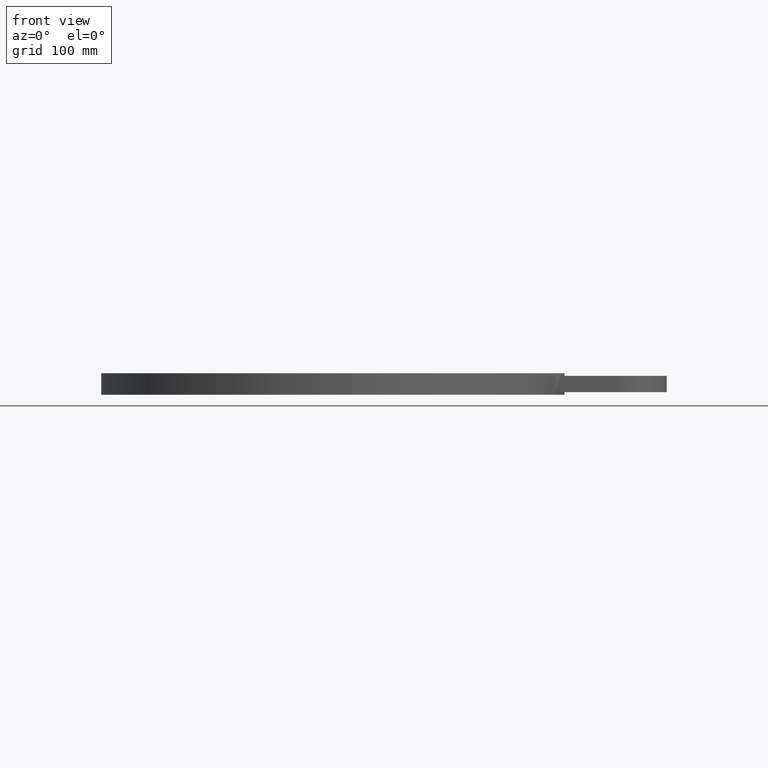
[diagram: clean part render]
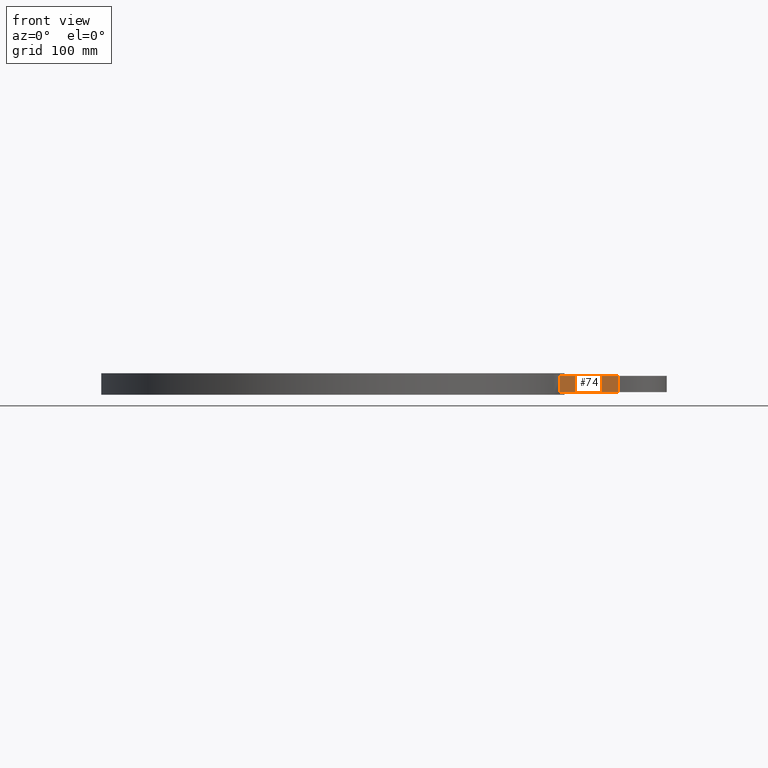
[diagram: same view with one face highlighted and labeled with its STEP entity id]
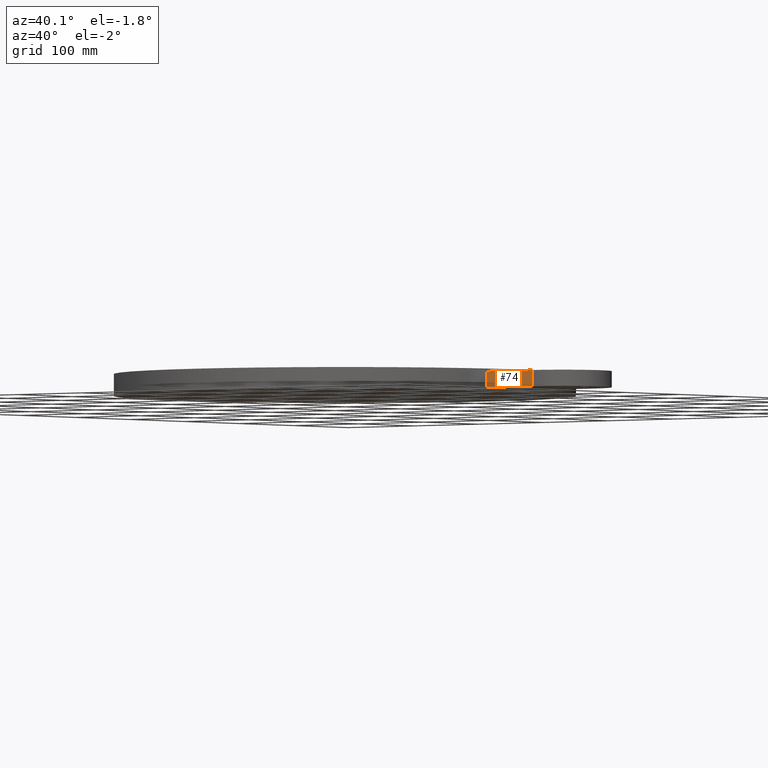
[diagram: same view with one face highlighted and labeled with its STEP entity id]
A machine part, front view. The second image highlights one B-rep face of the part: STEP entity #74.
A second angle (auxiliary view) of the same face is appended — the face is thin or edge-on in the first view.
In plain terms, the highlighted planar face has unit normal (0, -1, 0).
Its self-contained STEP definition (entity closure, byte-faithful):
#38=AXIS2_PLACEMENT_3D('Plane Axis2P3D',#35,#36,#37) ;
#35=CARTESIAN_POINT('Axis2P3D Location',(10.5118980209,-2.25000000001,0.)) ;
#40=CARTESIAN_POINT('Line Origine',(10.5118980209,-2.25000000001,0.)) ;
#44=CARTESIAN_POINT('Vertex',(10.5118980209,-2.25000000001,-0.375000000001)) ;
#46=CARTESIAN_POINT('Vertex',(10.5118980209,-2.25000000001,0.375000000001)) ;
#49=CARTESIAN_POINT('Line Origine',(11.8868980209,-2.25000000001,-0.375000000001)) ;
#53=CARTESIAN_POINT('Vertex',(13.2618980209,-2.25000000001,-0.375000000001)) ;
#56=CARTESIAN_POINT('Line Origine',(13.2618980209,-2.25000000001,0.)) ;
#60=CARTESIAN_POINT('Vertex',(13.2618980209,-2.25000000001,0.375000000001)) ;
#63=CARTESIAN_POINT('Line Origine',(11.8868980209,-2.25000000001,0.375000000001)) ;
#36=DIRECTION('Axis2P3D Direction',(0.,-0.0393700787402,0.)) ;
#37=DIRECTION('Axis2P3D XDirection',(0.0393700787402,0.,0.)) ;
#41=DIRECTION('Vector Direction',(0.,0.,0.0393700787402)) ;
#50=DIRECTION('Vector Direction',(0.0393700787402,0.,0.)) ;
#57=DIRECTION('Vector Direction',(0.,0.,0.0393700787402)) ;
#64=DIRECTION('Vector Direction',(0.0393700787402,0.,0.)) ;
#42=VECTOR('Line Direction',#41,0.0393700787402) ;
#51=VECTOR('Line Direction',#50,0.0393700787402) ;
#58=VECTOR('Line Direction',#57,0.0393700787402) ;
#65=VECTOR('Line Direction',#64,0.0393700787402) ;
#69=ORIENTED_EDGE('',*,*,#48,.F.) ;
#70=ORIENTED_EDGE('',*,*,#55,.T.) ;
#71=ORIENTED_EDGE('',*,*,#62,.T.) ;
#72=ORIENTED_EDGE('',*,*,#67,.F.) ;
#74=ADVANCED_FACE('PartBody',(#73),#39,.T.) ;
#48=EDGE_CURVE('',#45,#47,#43,.T.) ;
#55=EDGE_CURVE('',#45,#54,#52,.T.) ;
#62=EDGE_CURVE('',#54,#61,#59,.T.) ;
#67=EDGE_CURVE('',#47,#61,#66,.T.) ;
#68=EDGE_LOOP('',(#69,#70,#71,#72)) ;
#73=FACE_OUTER_BOUND('',#68,.T.) ;
#43=LINE('Line',#40,#42) ;
#52=LINE('Line',#49,#51) ;
#59=LINE('Line',#56,#58) ;
#66=LINE('Line',#63,#65) ;
#39=PLANE('',#38) ;
#45=VERTEX_POINT('',#44) ;
#47=VERTEX_POINT('',#46) ;
#54=VERTEX_POINT('',#53) ;
#61=VERTEX_POINT('',#60) ;